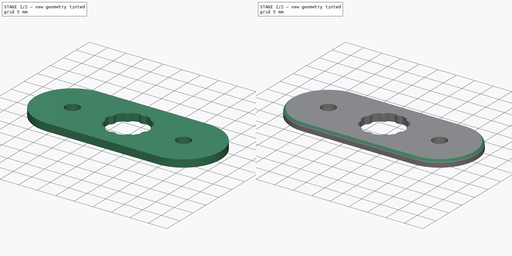
[diagram: build sequence overview — one tinted view per stage of 2, left to right]
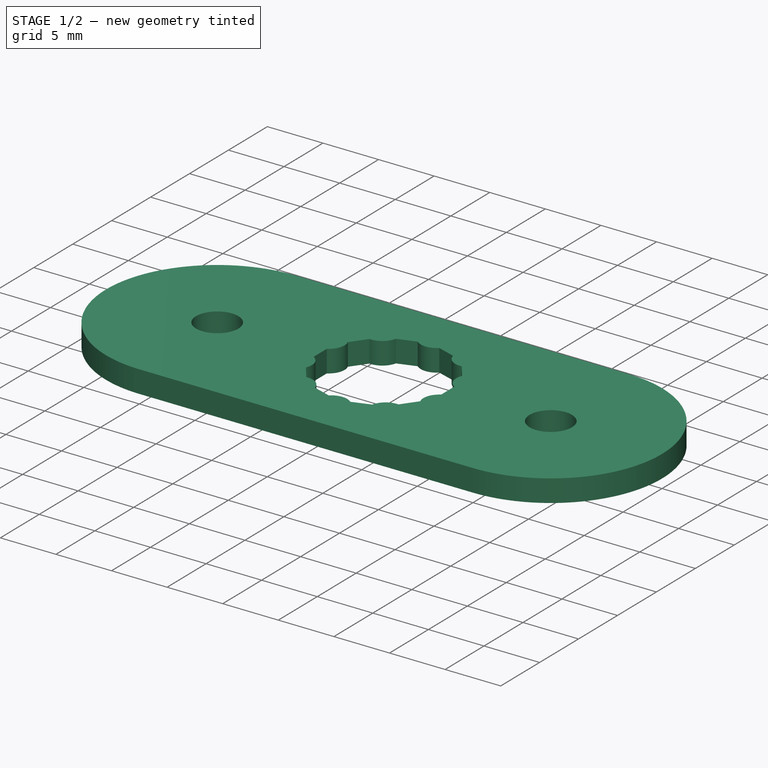
[diagram: stage 1 of 2 — iso view after this stage's code; geometry added in this stage tinted green]
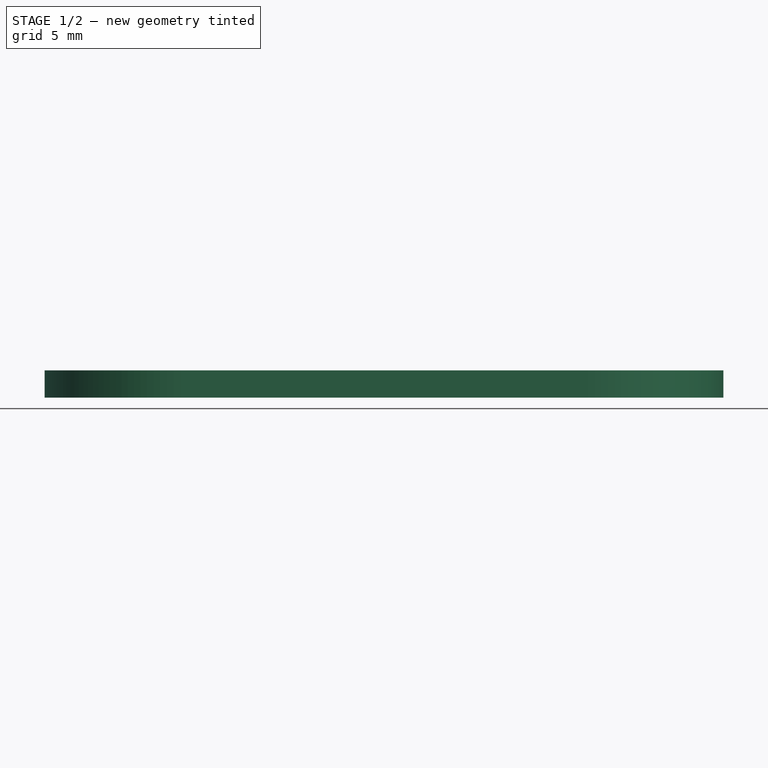
[diagram: stage 1 of 2 — front view after this stage's code; geometry added in this stage tinted green]
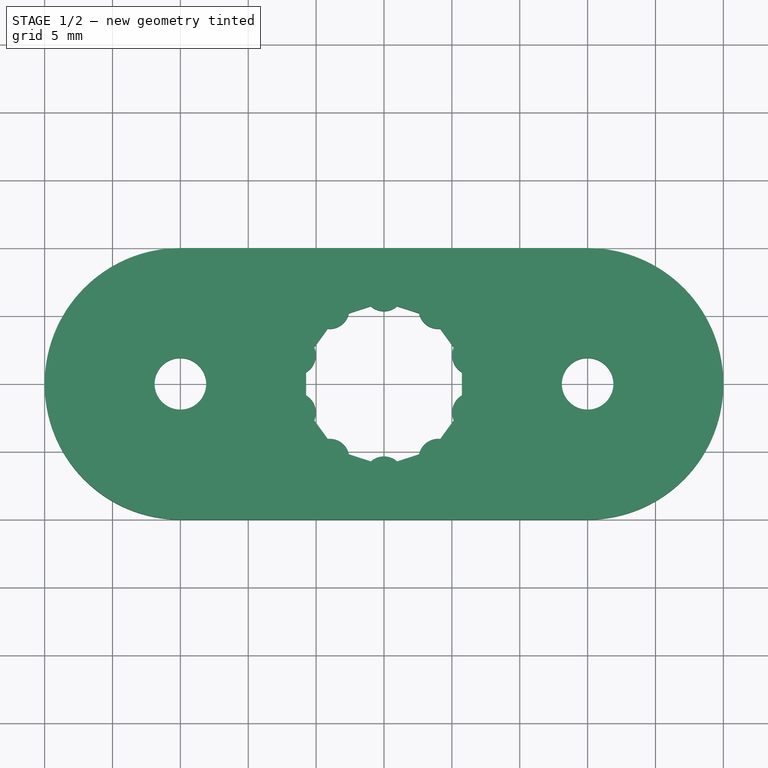
[diagram: stage 1 of 2 — top view after this stage's code; geometry added in this stage tinted green]
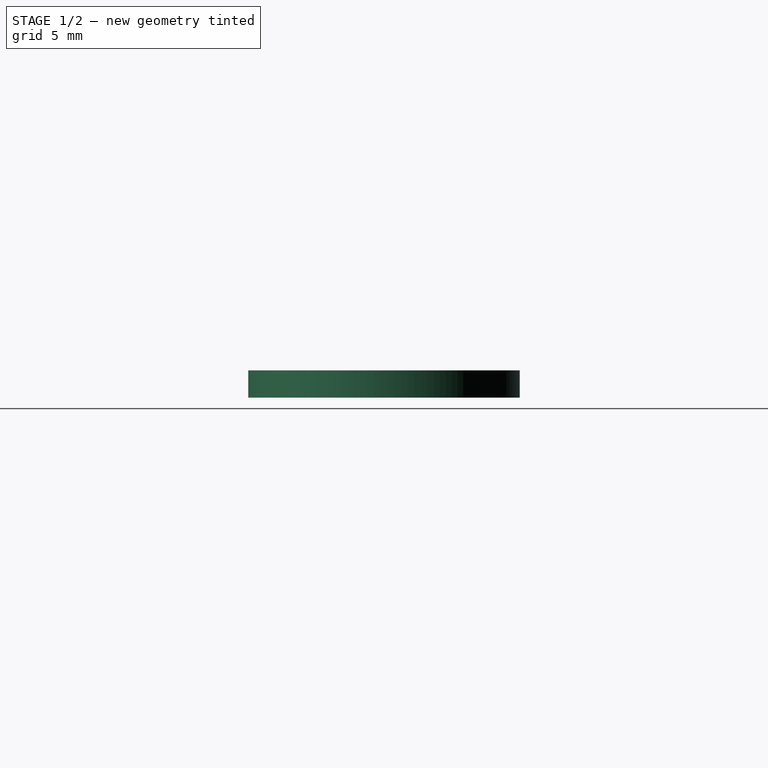
[diagram: stage 1 of 2 — right view after this stage's code; geometry added in this stage tinted green]
FCSTD DOCUMENT  (FreeCAD 0.17R13541 (Git))
Label: luer_lock_fassung
License: All rights reserved
LicenseURL: http://en.wikipedia.org/wiki/All_rights_reserved
objects: Sketcher::SketchObject×1, PartDesign::Pad×1, PartDesign::Fillet×1, PartDesign::Body×1
note: 5 computed .brp shape members not serialized (recipe doc carries the construction recipe); baked Part::Feature solids carry a one-line shape summary decoded from their .brp

FEATURE [Sketcher::SketchObject] Sketch
  MapMode = 5
  Support = -> [XY_Plane]
  sketch-geometry (29):
    g0: Circle [constr] CenterX=0 CenterY=0 CenterZ=0 NormalX=0 NormalY=0 NormalZ=1 AngleXU=0 Radius=5.8
    g1: ArcOfCircle CenterX=0 CenterY=6.8 CenterZ=0 NormalX=0 NormalY=0 NormalZ=1 AngleXU=0 Radius=1.45 StartAngle=3.98297 EndAngle=5.44181
    g2: ArcOfCircle CenterX=3.99694 CenterY=5.50132 CenterZ=0 NormalX=0 NormalY=0 NormalZ=1 AngleXU=0 Radius=1.45 StartAngle=3.35465 EndAngle=4.81349
    g3: ArcOfCircle CenterX=6.46718 CenterY=-2.10132 CenterZ=0 NormalX=0 NormalY=0 NormalZ=1 AngleXU=0 Radius=1.45 StartAngle=2.09802 EndAngle=3.55685
    g4: ArcOfCircle CenterX=3.99694 CenterY=-5.50132 CenterZ=0 NormalX=0 NormalY=0 NormalZ=1 AngleXU=0 Radius=1.45 StartAngle=1.4697 EndAngle=2.92853
    g5: ArcOfCircle CenterX=0 CenterY=-6.8 CenterZ=0 NormalX=0 NormalY=0 NormalZ=1 AngleXU=0 Radius=1.45 StartAngle=0.841379 EndAngle=2.30021
    g6: ArcOfCircle CenterX=-3.99694 CenterY=-5.50132 CenterZ=0 NormalX=0 NormalY=0 NormalZ=1 AngleXU=0 Radius=1.45 StartAngle=0.213061 EndAngle=1.6719
    g7: ArcOfCircle CenterX=-6.46718 CenterY=-2.10132 CenterZ=0 NormalX=0 NormalY=0 NormalZ=1 AngleXU=0 Radius=1.45 StartAngle=5.86793 EndAngle=7.32676
    g8: ArcOfCircle CenterX=-6.46718 CenterY=2.10132 CenterZ=0 NormalX=0 NormalY=0 NormalZ=1 AngleXU=0 Radius=1.45 StartAngle=5.23961 EndAngle=6.69844
    g9: ArcOfCircle CenterX=-3.99694 CenterY=5.50132 CenterZ=0 NormalX=0 NormalY=0 NormalZ=1 AngleXU=0 Radius=1.45 StartAngle=4.61129 EndAngle=6.07012
    g10: ArcOfCircle CenterX=6.46718 CenterY=2.10132 CenterZ=0 NormalX=0 NormalY=0 NormalZ=1 AngleXU=0 Radius=1.45 StartAngle=2.72633 EndAngle=4.18517
    g11: Circle [constr] CenterX=0 CenterY=0 CenterZ=0 NormalX=0 NormalY=0 NormalZ=1 AngleXU=0 Radius=6.8
    g12: LineSegment StartX=-5.14042 StartY=2.68628 StartZ=0 EndX=-4.14328 EndY=4.05872 EndZ=0
    g13: LineSegment StartX=-2.57973 StartY=5.19471 StartZ=0 EndX=-0.966331 EndY=5.71893 EndZ=0
    g14: LineSegment StartX=0.966331 StartY=5.71893 StartZ=0 EndX=2.57973 EndY=5.19471 EndZ=0
    g15: LineSegment StartX=4.14328 StartY=4.05872 StartZ=0 EndX=5.14042 EndY=2.68628 EndZ=0
    g16: LineSegment StartX=5.73764 StartY=0.848212 StartZ=0 EndX=5.73764 EndY=-0.848212 EndZ=0
    g17: LineSegment StartX=4.14328 StartY=-4.05872 StartZ=0 EndX=5.14042 EndY=-2.68628 EndZ=0
    g18: LineSegment StartX=0.966331 StartY=-5.71893 StartZ=0 EndX=2.57973 EndY=-5.19471 EndZ=0
    g19: LineSegment StartX=-2.57973 StartY=-5.19471 StartZ=0 EndX=-0.966331 EndY=-5.71893 EndZ=0
    g20: LineSegment StartX=-5.14042 StartY=-2.68628 StartZ=0 EndX=-4.14328 EndY=-4.05872 EndZ=0
    g21: LineSegment StartX=-5.73764 StartY=0.848212 StartZ=0 EndX=-5.73764 EndY=-0.848212 EndZ=0
    g22: Circle [constr] CenterX=0 CenterY=0 CenterZ=0 NormalX=0 NormalY=0 NormalZ=1 AngleXU=0 Radius=10
    g23: LineSegment StartX=-15 StartY=10 StartZ=0 EndX=15 EndY=10 EndZ=0
    g24: LineSegment StartX=15 StartY=-10 StartZ=0 EndX=-15 EndY=-10 EndZ=0
    g25: ArcOfCircle CenterX=15 CenterY=0 CenterZ=0 NormalX=0 NormalY=0 NormalZ=1 AngleXU=0 Radius=10 StartAngle=4.71239 EndAngle=7.85398
    g26: ArcOfCircle CenterX=-15 CenterY=0 CenterZ=0 NormalX=0 NormalY=0 NormalZ=1 AngleXU=0 Radius=10 StartAngle=1.5708 EndAngle=4.71239
    g27: Circle CenterX=-15 CenterY=0 CenterZ=0 NormalX=0 NormalY=0 NormalZ=1 AngleXU=0 Radius=1.9
    g28: Circle CenterX=15 CenterY=0 CenterZ=0 NormalX=0 NormalY=0 NormalZ=1 AngleXU=0 Radius=1.9
  constraints (87):
    c: Coincident(g0,g-1)
    c: PointOnObject(g1,g0)
    c: PointOnObject(g1,g0)
    c: PointOnObject(g2,g0)
    c: PointOnObject(g2,g0)
    c: PointOnObject(g3,g0)
    c: PointOnObject(g3,g0)
    c: PointOnObject(g4,g0)
    c: PointOnObject(g4,g0)
    c: PointOnObject(g5,g0)
    c: PointOnObject(g5,g0)
    c: PointOnObject(g6,g0)
    c: PointOnObject(g6,g0)
    c: PointOnObject(g7,g0)
    c: PointOnObject(g7,g0)
    c: PointOnObject(g8,g0)
    c: PointOnObject(g9,g0)
    c: PointOnObject(g9,g0)
    c: PointOnObject(g10,g0)
    c: PointOnObject(g10,g0)
    c: Equal(g1,g2)
    c: Equal(g1,g10)
    c: Equal(g1, g3-g9) x7
    c: Coincident(g11,g-1)
    c: PointOnObject(g1,g11)
    c: PointOnObject(g2,g11)
    c: PointOnObject(g10,g11)
    c: PointOnObject(g3,g11)
    c: PointOnObject(g4,g11)
    c: PointOnObject(g5,g11)
    c: PointOnObject(g6,g11)
    c: PointOnObject(g7,g11)
    c: PointOnObject(g8,g11)
    c: PointOnObject(g9,g11)
    c: Coincident(g12,g8)
    c: Coincident(g12,g9)
    c: Coincident(g13,g9)
    c: Coincident(g13,g1)
    c: Coincident(g14,g1)
    c: Coincident(g14,g2)
    c: PointOnObject(g8,g0)
    c: Coincident(g15,g2)
    c: Coincident(g16,g10)
    c: Coincident(g17,g4)
    c: Coincident(g17,g3)
    c: Coincident(g18,g5)
    c: Coincident(g18,g4)
    c: Coincident(g19,g6)
    c: Coincident(g19,g5)
    c: Coincident(g20,g7)
    c: Coincident(g20,g6)
    c: Coincident(g21,g8)
    c: Coincident(g15,g10)
    c: Coincident(g16,g3)
    c: Coincident(g21,g7)
    c: Radius(g0) = 5.8
    c: Radius(g11) = 6.8
    c: Equal(g16,g15)
    c: Equal(g15,g14)
    c: Equal(g14,g13)
    c: Equal(g13,g12)
    c: Equal(g12,g21)
    c: Equal(g21,g20)
    c: Equal(g20,g19)
    c: Equal(g19,g18)
    c: Equal(g18,g17)
    c: PointOnObject(g1,g-2)
    c: Radius(g2) = 1.45
    c: Coincident(g22,g-1)
    c: Radius(g22) = 10
    c: Horizontal(g23)
    c: Horizontal(g24)
    c: Coincident(g25,g23)
    c: Coincident(g25,g24)
    c: Coincident(g26,g23)
    c: Coincident(g26,g24)
    c: Vertical(g23,g24)
    c: Vertical(g23,g24)
    c: Distance(g23,g24) = 20
    c: Symmetric(g23,g24,g-1)
    c: Radius(g25) = 10
    c: Equal(g25,g26)
    c: Distance(g26,g25) = 30
    c: Coincident(g27,g26)
    c: Coincident(g28,g25)
    c: Radius(g28) = 1.9
    c: Equal(g28,g27)
FEATURE [PartDesign::Pad] Pad
  Length = 2
  Length2 = 100
  Profile = -> Sketch
  Type = 0
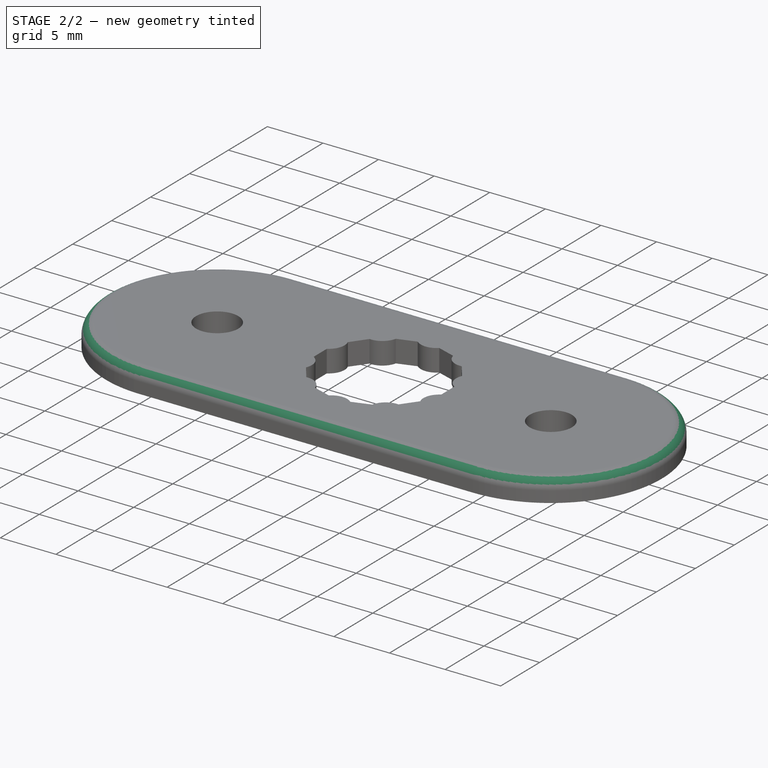
[diagram: stage 2 of 2 — iso view after this stage's code; geometry added in this stage tinted green]
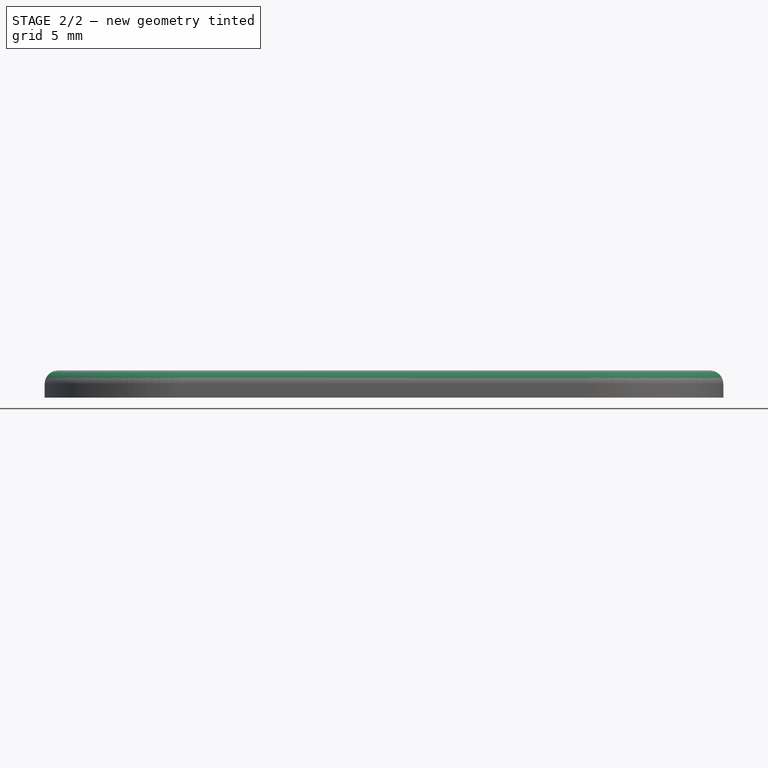
[diagram: stage 2 of 2 — front view after this stage's code; geometry added in this stage tinted green]
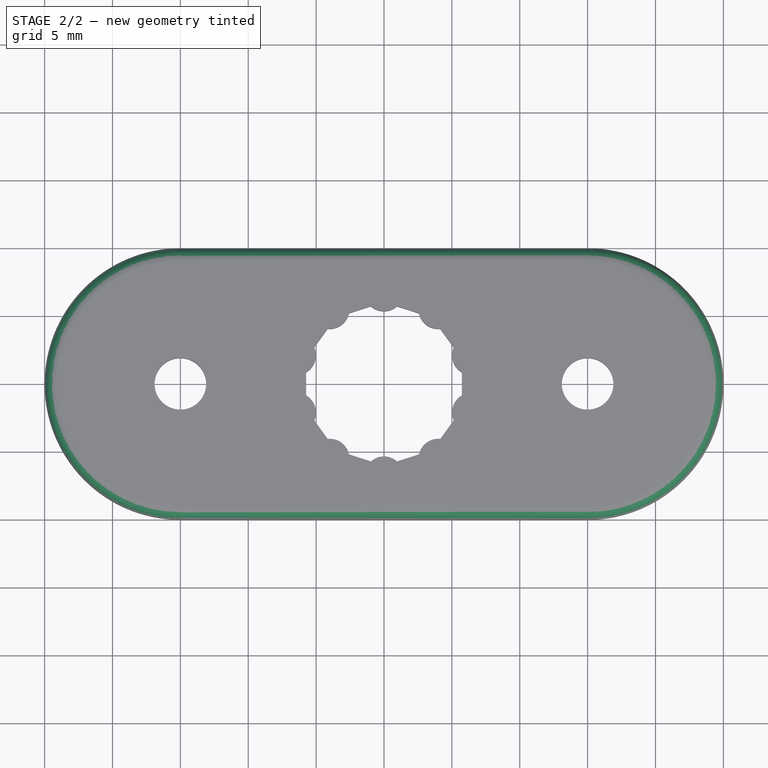
[diagram: stage 2 of 2 — top view after this stage's code; geometry added in this stage tinted green]
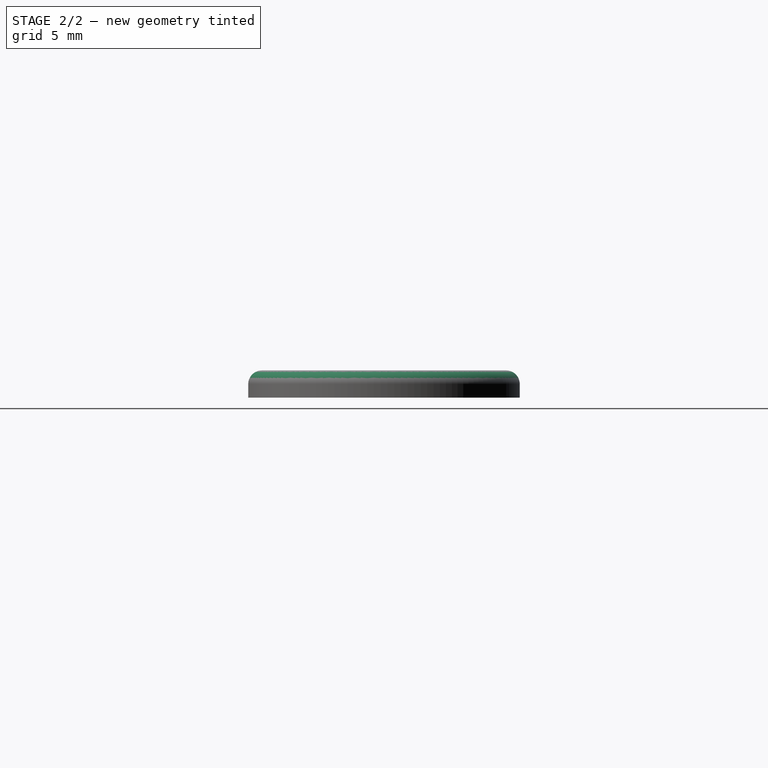
[diagram: stage 2 of 2 — right view after this stage's code; geometry added in this stage tinted green]
FEATURE [PartDesign::Fillet] Fillet
  Base = -> Pad [Edge10,Edge12,Edge4,Edge7]
  BaseFeature = -> Pad
  Radius = 1
FEATURE [PartDesign::Body] Body
  Group = -> [Sketch,Pad,Fillet]
  Origin = -> Origin
  Tip = -> Fillet
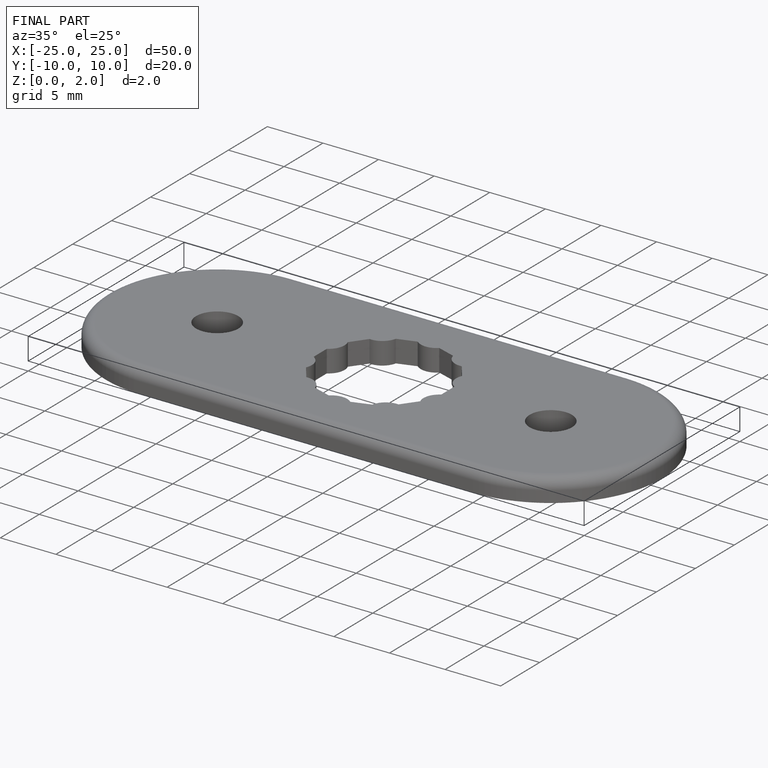
[diagram: finished part — iso view with bounding-box wireframe]
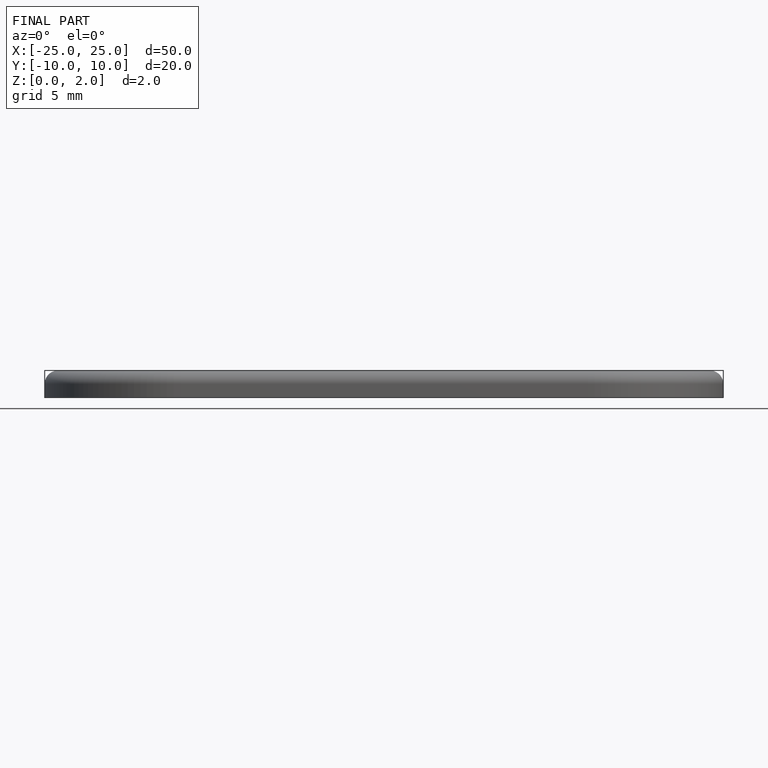
[diagram: finished part — front view with bounding-box wireframe]
